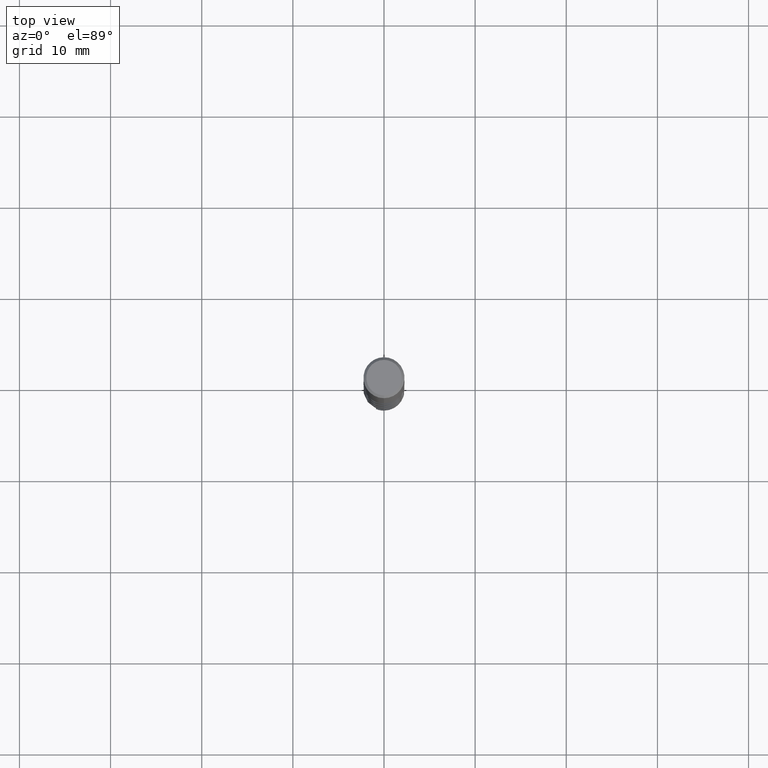
[diagram: clean part render]
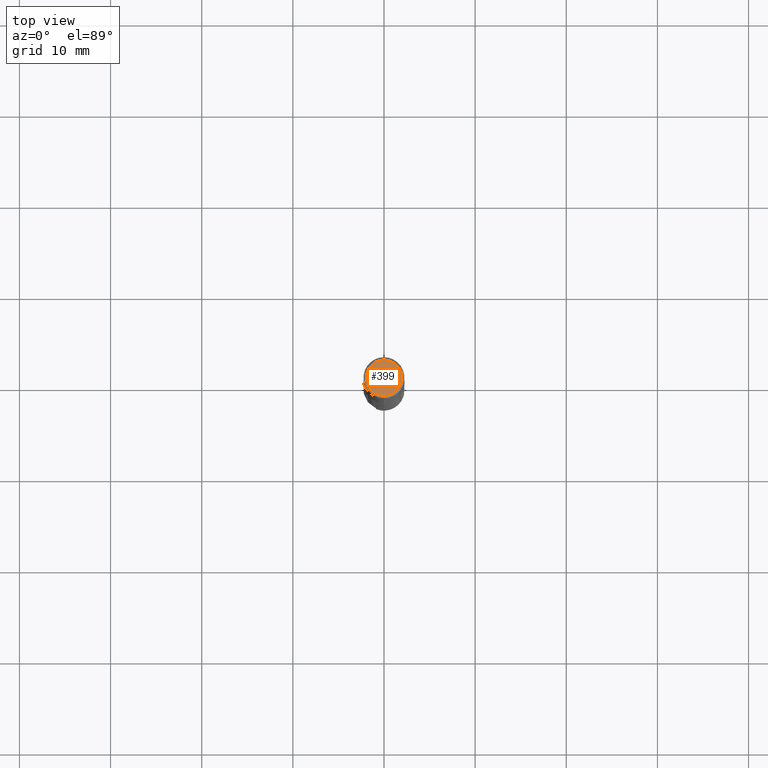
[diagram: same view with one face highlighted and labeled with its STEP entity id]
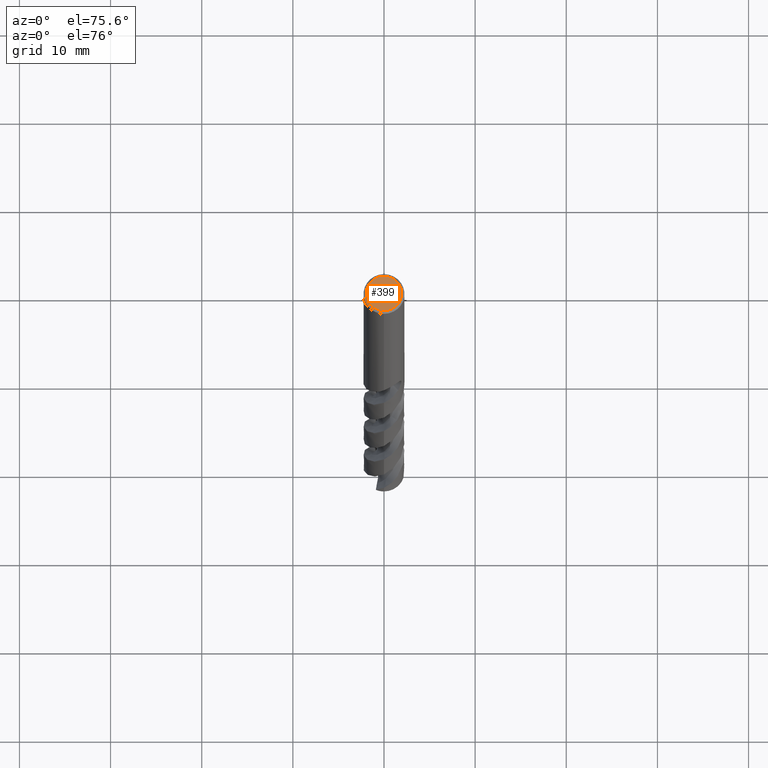
[diagram: same view with one face highlighted and labeled with its STEP entity id]
A machine part, top view. The second image highlights one B-rep face of the part: STEP entity #399.
A second angle (auxiliary view) of the same face is appended — the face is thin or edge-on in the first view.
In plain terms, the highlighted planar face has unit normal (-0, 0, 1).
Its self-contained STEP definition (entity closure, byte-faithful):
#329=EDGE_CURVE('',#545,#809,#893,.T.);
#399=ADVANCED_FACE('',(#970),#971,.T.);
#545=VERTEX_POINT('',#1130);
#651=EDGE_CURVE('',#809,#545,#1245,.T.);
#809=VERTEX_POINT('',#1419);
#893=CIRCLE('',#1906,1.95);
#970=FACE_OUTER_BOUND('',#2332,.T.);
#971=PLANE('',#2333);
#1130=CARTESIAN_POINT('',(0.0,1.95,0.0));
#1245=CIRCLE('',#7753,1.95);
#1419=CARTESIAN_POINT('',(2.38798238995364E-016,-1.95,0.0));
#1906=AXIS2_PLACEMENT_3D('',#12385,#12386,#12387);
#2332=EDGE_LOOP('',(#12460,#12461));
#2333=AXIS2_PLACEMENT_3D('',#12462,#12463,#12464);
#7753=AXIS2_PLACEMENT_3D('',#12728,#12729,#12730);
#12385=CARTESIAN_POINT('',(0.0,0.0,0.0));
#12386=DIRECTION('',(0.0,0.0,-1.0));
#12387=DIRECTION('',(0.0,1.0,0.0));
#12460=ORIENTED_EDGE('',*,*,#329,.F.);
#12461=ORIENTED_EDGE('',*,*,#651,.F.);
#12462=CARTESIAN_POINT('',(0.0,0.975,0.0));
#12463=DIRECTION('',(-0.0,0.0,1.0));
#12464=DIRECTION('',(0.0,-1.0,0.0));
#12728=CARTESIAN_POINT('',(0.0,0.0,0.0));
#12729=DIRECTION('',(0.0,0.0,-1.0));
#12730=DIRECTION('',(0.0,1.0,0.0));